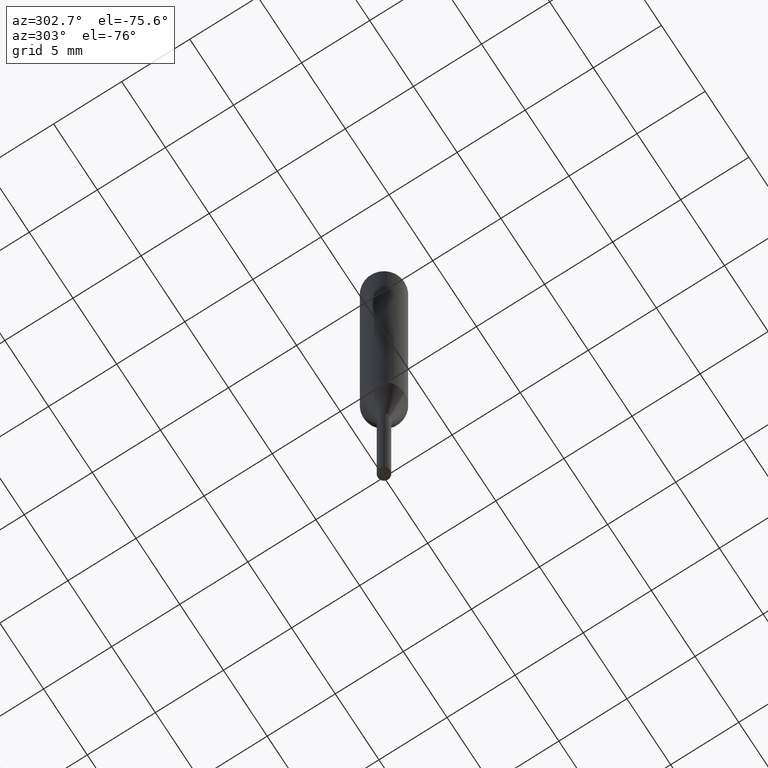
[diagram: clean part render]
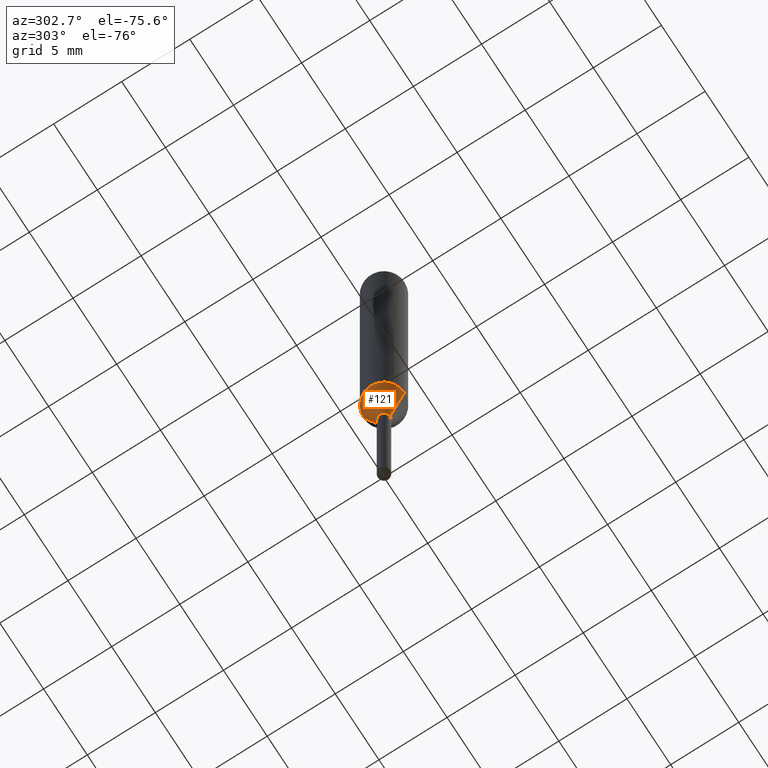
[diagram: same view with one face highlighted and labeled with its STEP entity id]
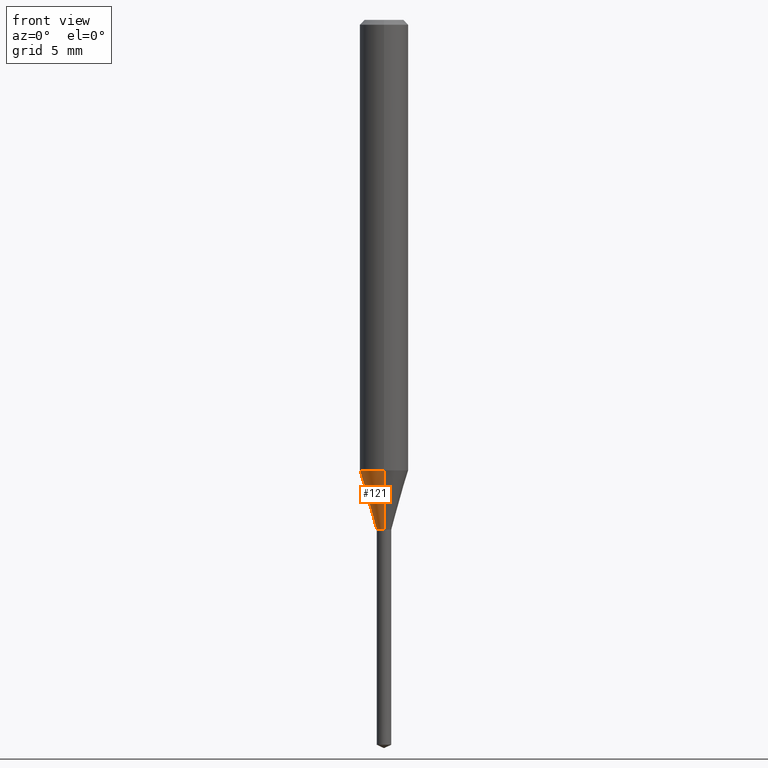
[diagram: same view with one face highlighted and labeled with its STEP entity id]
A machine part, auxiliary view. The second image highlights one B-rep face of the part: STEP entity #121.
A second angle (front view) of the same face is appended — the face is thin or edge-on in the first view.
In plain terms, the highlighted conical surface has half-angle 16.003 deg.
Its self-contained STEP definition (entity closure, byte-faithful):
#103=VERTEX_POINT('',#240);
#121=ADVANCED_FACE('',(#262),#263,.T.);
#125=EDGE_CURVE('',#161,#177,#267,.T.);
#161=VERTEX_POINT('',#307);
#177=VERTEX_POINT('',#325);
#183=EDGE_CURVE('',#189,#103,#331,.T.);
#187=EDGE_CURVE('',#177,#103,#335,.T.);
#189=VERTEX_POINT('',#337);
#197=EDGE_CURVE('',#189,#161,#347,.T.);
#240=CARTESIAN_POINT('',(0.0,0.45,-31.4991339745962));
#262=FACE_OUTER_BOUND('',#410,.T.);
#263=CONICAL_SURFACE('',#411,0.975,0.27929980700525);
#267=CIRCLE('',#417,1.5);
#307=CARTESIAN_POINT('',(1.83690953073357E-016,-1.5,-27.838));
#325=CARTESIAN_POINT('',(0.0,1.5,-27.838));
#331=CIRCLE('',#501,0.45);
#335=LINE('',#506,#507);
#337=CARTESIAN_POINT('',(5.5107285922007E-017,-0.45,-31.4991339745962));
#347=LINE('',#521,#522);
#410=EDGE_LOOP('',(#590,#591,#592,#593));
#411=AXIS2_PLACEMENT_3D('',#594,#595,#596);
#417=AXIS2_PLACEMENT_3D('',#600,#601,#602);
#501=AXIS2_PLACEMENT_3D('',#676,#677,#678);
#506=CARTESIAN_POINT('',(-1.19399119497682E-016,0.975,-29.6685669872981));
#507=VECTOR('',#679,1.0);
#521=CARTESIAN_POINT('',(1.19399119497682E-016,-0.975,-29.6685669872981));
#522=VECTOR('',#699,1.0);
#590=ORIENTED_EDGE('',*,*,#187,.T.);
#591=ORIENTED_EDGE('',*,*,#183,.F.);
#592=ORIENTED_EDGE('',*,*,#197,.T.);
#593=ORIENTED_EDGE('',*,*,#125,.T.);
#594=CARTESIAN_POINT('',(0.0,0.0,-29.6685669872981));
#595=DIRECTION('',(-0.0,-0.0,1.0));
#596=DIRECTION('',(0.0,1.0,0.0));
#600=CARTESIAN_POINT('',(0.0,0.0,-27.838));
#601=DIRECTION('',(0.0,0.0,-1.0));
#602=DIRECTION('',(0.0,1.0,0.0));
#676=CARTESIAN_POINT('',(0.0,0.0,-31.4991339745962));
#677=DIRECTION('',(0.0,0.0,-1.0));
#678=DIRECTION('',(0.0,1.0,0.0));
#679=DIRECTION('',(3.37602732897714E-017,-0.275682656589157,-0.961248704995718));
#699=DIRECTION('',(3.37602732897714E-017,-0.275682656589157,0.961248704995718));